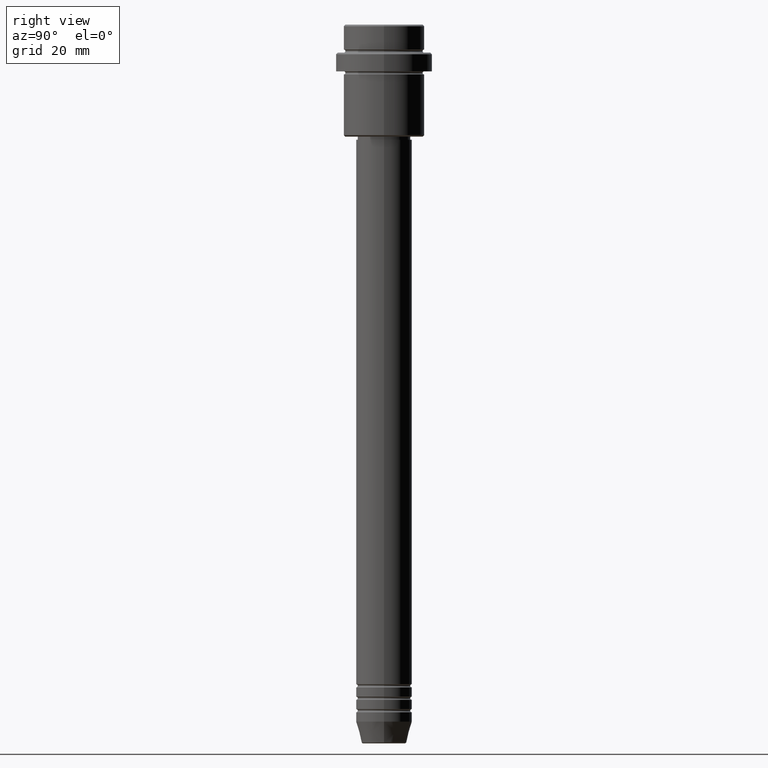
[diagram: clean part render]
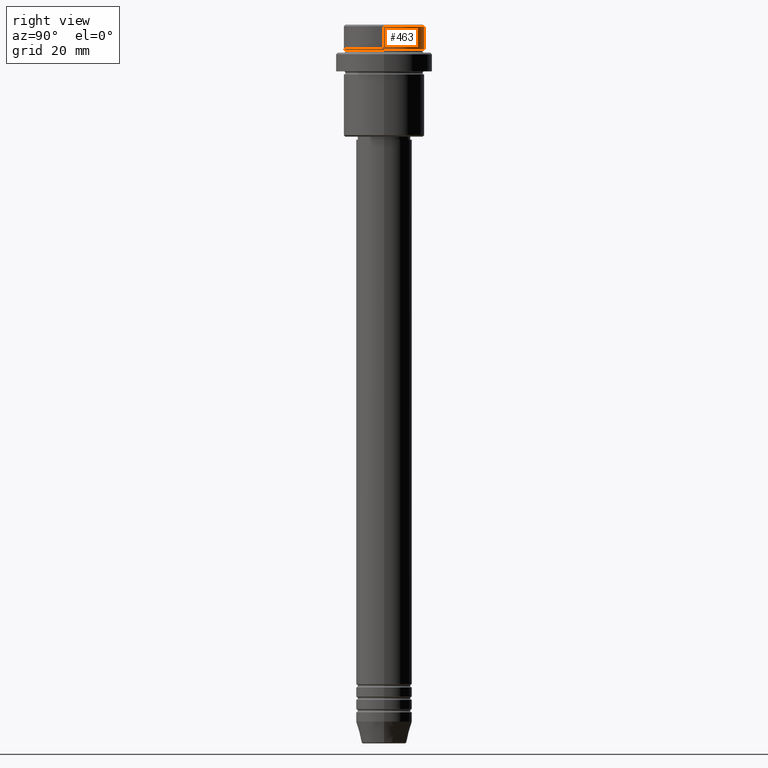
[diagram: same view with one face highlighted and labeled with its STEP entity id]
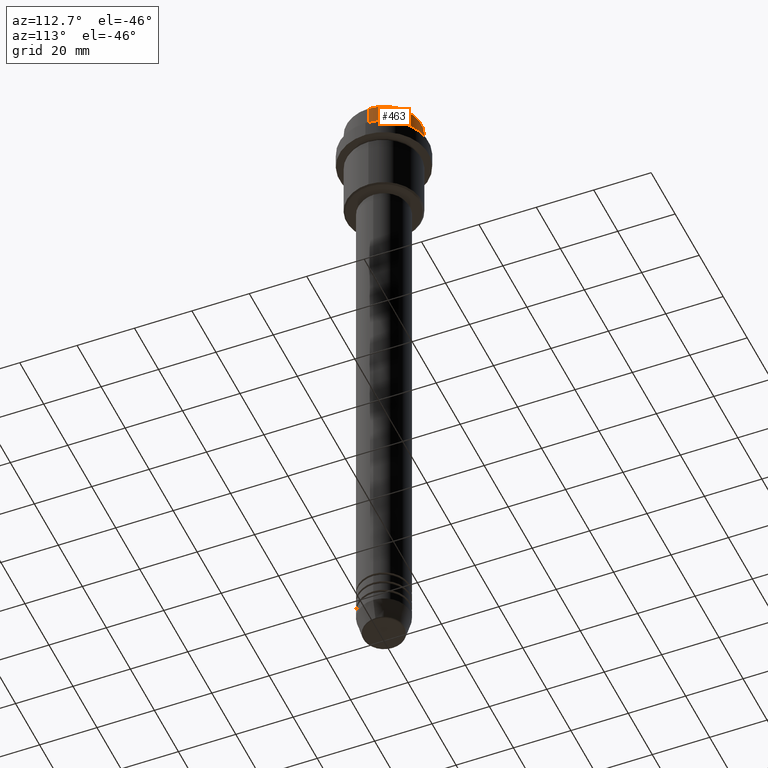
[diagram: same view with one face highlighted and labeled with its STEP entity id]
A machine part, right view. The second image highlights one B-rep face of the part: STEP entity #463.
A second angle (auxiliary view) of the same face is appended — the face is thin or edge-on in the first view.
In plain terms, the highlighted cylindrical surface (partial cylindrical patch) has radius 13 mm, axis along (-0, -0, 1).
Its self-contained STEP definition (entity closure, byte-faithful):
#10 = DIRECTION ( 'NONE',  ( -0.000000000000000000, -0.000000000000000000, 1.000000000000000000 ) ) ;
#30 = DIRECTION ( 'NONE',  ( 0.000000000000000000, 0.000000000000000000, -1.000000000000000000 ) ) ;
#128 = FACE_OUTER_BOUND ( 'NONE', #1141, .T. ) ;
#259 = ORIENTED_EDGE ( 'NONE', *, *, #483, .T. ) ;
#337 = CARTESIAN_POINT ( 'NONE',  ( 0.000000000000000000, 0.000000000000000000, 0.000000000000000000 ) ) ;
#443 = DIRECTION ( 'NONE',  ( 1.000000000000000000, 0.000000000000000000, 0.000000000000000000 ) ) ;
#463 = ADVANCED_FACE ( 'NONE', ( #128 ), #1319, .T. ) ;
#483 = EDGE_CURVE ( 'NONE', #883, #1050, #1089, .T. ) ;
#564 = LINE ( 'NONE', #1220, #1311 ) ;
#566 = CARTESIAN_POINT ( 'NONE',  ( 12.99999999999999822, 0.000000000000000000, -0.5000000000000316414 ) ) ;
#578 = DIRECTION ( 'NONE',  ( -0.000000000000000000, -0.000000000000000000, 1.000000000000000000 ) ) ;
#771 = DIRECTION ( 'NONE',  ( -0.000000000000000000, -0.000000000000000000, 1.000000000000000000 ) ) ;
#785 = CIRCLE ( 'NONE', #963, 12.99999999999999822 ) ;
#794 = CARTESIAN_POINT ( 'NONE',  ( 0.000000000000000000, 0.000000000000000000, -0.5000000000000316414 ) ) ;
#820 = CARTESIAN_POINT ( 'NONE',  ( 12.99999999999999822, 0.000000000000000000, -7.999999999999998224 ) ) ;
#824 = ORIENTED_EDGE ( 'NONE', *, *, #978, .T. ) ;
#851 = VERTEX_POINT ( 'NONE', #566 ) ;
#883 = VERTEX_POINT ( 'NONE', #1310 ) ;
#896 = VECTOR ( 'NONE', #771, 1000.000000000000000 ) ;
#900 = AXIS2_PLACEMENT_3D ( 'NONE', #1209, #1417, #443 ) ;
#918 = ORIENTED_EDGE ( 'NONE', *, *, #1267, .F. ) ;
#931 = ORIENTED_EDGE ( 'NONE', *, *, #1244, .T. ) ;
#963 = AXIS2_PLACEMENT_3D ( 'NONE', #794, #30, #1229 ) ;
#978 = EDGE_CURVE ( 'NONE', #1050, #851, #785, .T. ) ;
#1050 = VERTEX_POINT ( 'NONE', #1360 ) ;
#1089 = LINE ( 'NONE', #1225, #896 ) ;
#1110 = DIRECTION ( 'NONE',  ( 1.000000000000000000, 0.000000000000000000, 0.000000000000000000 ) ) ;
#1141 = EDGE_LOOP ( 'NONE', ( #931, #259, #824, #918 ) ) ;
#1209 = CARTESIAN_POINT ( 'NONE',  ( 0.000000000000000000, 0.000000000000000000, -7.999999999999998224 ) ) ;
#1220 = CARTESIAN_POINT ( 'NONE',  ( 12.99999999999999822, 0.000000000000000000, 0.000000000000000000 ) ) ;
#1225 = CARTESIAN_POINT ( 'NONE',  ( -12.99999999999999822, 1.592040838891558898E-15, 0.000000000000000000 ) ) ;
#1229 = DIRECTION ( 'NONE',  ( 1.000000000000000000, 0.000000000000000000, 0.000000000000000000 ) ) ;
#1244 = EDGE_CURVE ( 'NONE', #1391, #883, #1264, .T. ) ;
#1264 = CIRCLE ( 'NONE', #900, 12.99999999999999822 ) ;
#1267 = EDGE_CURVE ( 'NONE', #1391, #851, #564, .T. ) ;
#1310 = CARTESIAN_POINT ( 'NONE',  ( -12.99999999999999822, 1.592040838891558898E-15, -7.999999999999998224 ) ) ;
#1311 = VECTOR ( 'NONE', #578, 1000.000000000000000 ) ;
#1319 = CYLINDRICAL_SURFACE ( 'NONE', #1329, 12.99999999999999822 ) ;
#1329 = AXIS2_PLACEMENT_3D ( 'NONE', #337, #10, #1110 ) ;
#1360 = CARTESIAN_POINT ( 'NONE',  ( -12.99999999999999822, 1.592040838891558898E-15, -0.5000000000000316414 ) ) ;
#1391 = VERTEX_POINT ( 'NONE', #820 ) ;
#1417 = DIRECTION ( 'NONE',  ( -0.000000000000000000, -0.000000000000000000, 1.000000000000000000 ) ) ;